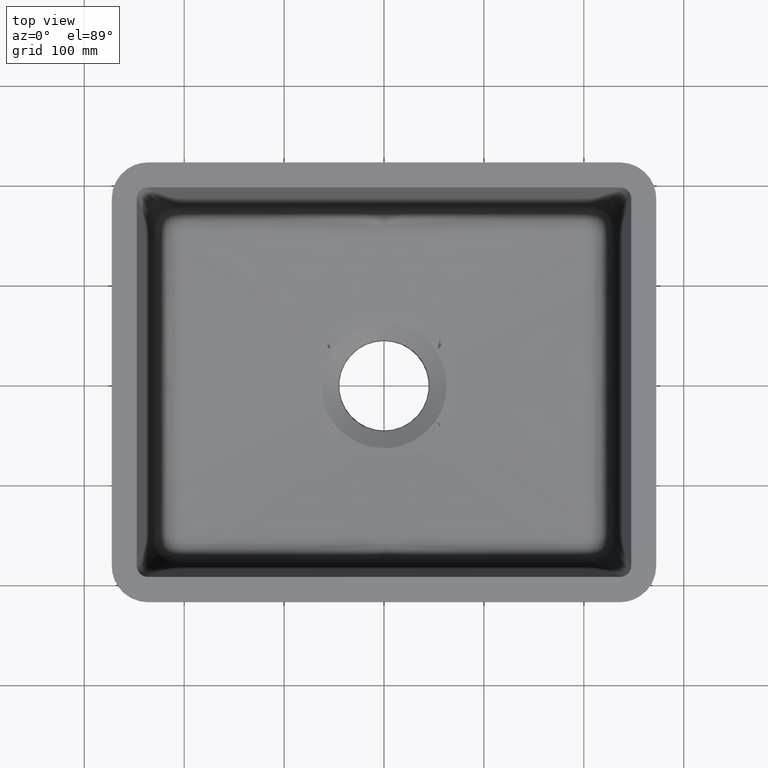
[diagram: clean part render]
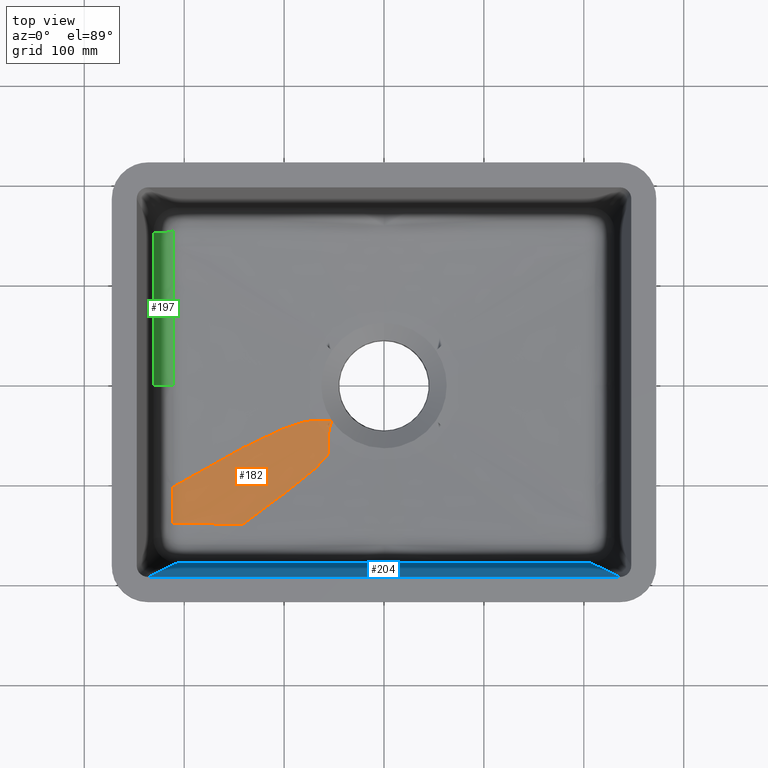
[diagram: same view with three faces highlighted in distinct colors, each labeled with its STEP entity id]
A machine part, top view with three faces highlighted in distinct colors.
Their STEP definitions:

[orange] entity #182 — the highlighted face is a freeform B-spline surface patch.
#114=(
BOUNDED_SURFACE()
B_SPLINE_SURFACE(3,2,((#7801,#7802,#7803),(#7804,#7805,#7806),(#7807,#7808,
#7809),(#7810,#7811,#7812),(#7813,#7814,#7815),(#7816,#7817,#7818),(#7819,
#7820,#7821),(#7822,#7823,#7824),(#7825,#7826,#7827),(#7828,#7829,#7830),
(#7831,#7832,#7833),(#7834,#7835,#7836),(#7837,#7838,#7839),(#7840,#7841,
#7842),(#7843,#7844,#7845),(#7846,#7847,#7848),(#7849,#7850,#7851),(#7852,
#7853,#7854),(#7855,#7856,#7857),(#7858,#7859,#7860),(#7861,#7862,#7863),
(#7864,#7865,#7866),(#7867,#7868,#7869),(#7870,#7871,#7872),(#7873,#7874,
#7875),(#7876,#7877,#7878),(#7879,#7880,#7881),(#7882,#7883,#7884),(#7885,
#7886,#7887),(#7888,#7889,#7890),(#7891,#7892,#7893),(#7894,#7895,#7896)),
 .UNSPECIFIED.,.F.,.F.,.F.)
B_SPLINE_SURFACE_WITH_KNOTS((4,2,2,2,2,2,2,2,2,2,2,2,2,2,2,4),(3,3),(0.,
0.213945135224831,0.475963423483221,0.606972567612415,0.73798171174161,
0.803486283806208,0.868990855870805,0.901743141903104,0.918119284919253,
0.926307356427328,0.934495427935403,0.942683499443477,0.950871570951552,
0.959059642459626,0.967247713967701,1.),(0.,1.),.UNSPECIFIED.)
GEOMETRIC_REPRESENTATION_ITEM()
RATIONAL_B_SPLINE_SURFACE(((1.,0.998413237192436,1.),(1.,0.998460611542919,
1.),(1.,0.998511674976756,1.),(1.,0.998636818169903,1.),(1.,0.998713128591255,
1.),(1.,0.998847950176381,1.),(1.,0.998896313805004,1.),(1.,0.999003929138397,
1.),(1.,0.999062835277853,1.),(1.,0.999167401912001,1.),(1.,0.99920499710205,
1.),(1.,0.999289860371923,1.),(1.,0.999336651411015,1.),(1.,0.999423425809369,
1.),(1.,0.999455012869462,1.),(1.,0.999511746587631,1.),(1.,0.999532179727924,
1.),(1.,0.999567907300105,1.),(1.,0.999580668768038,1.),(1.,0.999609438904281,
1.),(1.,0.999625279984538,1.),(1.,0.999664933178482,1.),(1.,0.999688954038963,
1.),(1.,0.999759227199769,1.),(1.,0.999804087082728,1.),(1.,0.999863667930379,
1.),(1.,0.999884263303245,1.),(1.,0.999918351986133,1.),(1.,0.999931515997214,
1.),(1.,0.999986636823786,1.),(1.,1.,1.),(1.,1.,1.)))
REPRESENTATION_ITEM('')
SURFACE()
);
#161=(
BOUNDED_CURVE()
B_SPLINE_CURVE(3,(#4969,#4970,#4971,#4972,#4973,#4974,#4975,#4976,#4977,
#4978,#4979,#4980,#4981,#4982,#4983,#4984,#4985,#4986,#4987,#4988,#4989,
#4990,#4991,#4992,#4993,#4994,#4995,#4996,#4997,#4998),.UNSPECIFIED.,.F.,
 .F.)
B_SPLINE_CURVE_WITH_KNOTS((4,2,2,2,2,2,2,2,2,2,2,2,2,2,4),(0.,0.218228102388509,
0.41367107679138,0.609114051194254,0.706835538395691,0.804557025597127,
0.853417769197846,0.877848140998204,0.890063326898384,0.902278512798564,
0.914493698698743,0.926708884598923,0.938924070499101,0.951139256399281,
1.),.UNSPECIFIED.)
CURVE()
GEOMETRIC_REPRESENTATION_ITEM()
RATIONAL_B_SPLINE_CURVE((1.,1.,1.,1.,1.,1.,1.,1.,1.,1.,1.,1.,1.,1.,1.,1.,
1.,1.,1.,1.,1.,1.,1.,1.,1.,1.,1.,1.,1.,1.))
REPRESENTATION_ITEM('')
);
#182=ADVANCED_FACE('',(#253),#114,.T.);
#253=FACE_OUTER_BOUND('',#323,.T.);
#323=EDGE_LOOP('',(#467,#468,#469,#470));
#467=ORIENTED_EDGE('',*,*,#934,.F.);
#468=ORIENTED_EDGE('',*,*,#935,.F.);
#469=ORIENTED_EDGE('',*,*,#932,.T.);
#470=ORIENTED_EDGE('',*,*,#929,.T.);
#787=VERTEX_POINT('',#1563);
#802=VERTEX_POINT('',#4955);
#805=VERTEX_POINT('',#5100);
#806=VERTEX_POINT('',#7796);
#929=EDGE_CURVE('',#802,#787,#161,.T.);
#932=EDGE_CURVE('',#805,#802,#1109,.T.);
#934=EDGE_CURVE('',#806,#787,#1111,.T.);
#935=EDGE_CURVE('',#805,#806,#1112,.T.);
#1109=B_SPLINE_CURVE_WITH_KNOTS('',3,(#5096,#5097,#5098,#5099),
 .UNSPECIFIED.,.F.,.F.,(4,4),(0.,1.),.UNSPECIFIED.);
#1111=B_SPLINE_CURVE_WITH_KNOTS('',3,(#7713,#7714,#7715,#7716,#7717,#7718,
#7719,#7720,#7721,#7722,#7723,#7724,#7725,#7726,#7727,#7728,#7729,#7730,
#7731,#7732,#7733,#7734,#7735,#7736,#7737,#7738,#7739,#7740,#7741,#7742,
#7743,#7744,#7745,#7746,#7747,#7748,#7749,#7750,#7751,#7752,#7753,#7754,
#7755,#7756,#7757,#7758,#7759,#7760,#7761,#7762,#7763,#7764,#7765,#7766,
#7767,#7768,#7769,#7770,#7771,#7772,#7773,#7774,#7775,#7776,#7777,#7778,
#7779,#7780,#7781,#7782,#7783,#7784,#7785,#7786,#7787,#7788,#7789,#7790,
#7791,#7792,#7793,#7794,#7795),.UNSPECIFIED.,.F.,.F.,(4,2,2,2,1,1,2,2,2,
2,2,1,1,1,1,2,2,2,2,1,1,1,2,2,2,2,2,1,1,2,2,2,2,1,1,2,2,2,2,1,1,2,2,2,2,
2,2,2,4),(0.,0.125000000000041,0.187500000000061,0.218750000000071,0.234375000000076,
0.242187500000079,0.24609375000008,0.250000000000082,0.375000000000131,
0.437500000000156,0.468750000000168,0.484375000000175,0.492187500000178,
0.49609375000018,0.498046875000181,0.499023437500181,0.500000000000181,
0.562500000000166,0.593750000000158,0.609375000000155,0.617187500000153,
0.621093750000152,0.623046875000152,0.625000000000151,0.687500000000131,
0.718750000000122,0.734375000000117,0.742187500000114,0.746093750000113,
0.748046875000112,0.750000000000111,0.781250000000099,0.796875000000092,
0.804687500000089,0.808593750000087,0.810546875000086,0.812500000000085,
0.843750000000072,0.859375000000065,0.867187500000062,0.87109375000006,
0.873046875000059,0.875000000000058,0.906250000000044,0.91406250000004,
0.921875000000037,0.937500000000029,0.968750000000015,1.),.UNSPECIFIED.);
#1112=B_SPLINE_CURVE_WITH_KNOTS('',3,(#7797,#7798,#7799,#7800),
 .UNSPECIFIED.,.F.,.F.,(4,4),(0.,1.),.UNSPECIFIED.);
#1563=CARTESIAN_POINT('',(-52.1158131093463,-34.9724057144112,-192.99999999983));
#4955=CARTESIAN_POINT('',(-141.270108558989,-138.983760886286,-184.541839191381));
#4969=CARTESIAN_POINT('',(-141.269525647501,-138.983398538869,-184.541870327406));
#4970=CARTESIAN_POINT('',(-133.899580339187,-133.5959238511,-185.051113968633));
#4971=CARTESIAN_POINT('',(-126.570455127032,-128.19728834914,-185.564932728706));
#4972=CARTESIAN_POINT('',(-112.784425051804,-117.932330907734,-186.549684389087));
#4973=CARTESIAN_POINT('',(-106.317988834228,-113.070074313085,-187.019455878666));
#4974=CARTESIAN_POINT('',(-93.5322467722745,-103.287391850615,-187.971511192661));
#4975=CARTESIAN_POINT('',(-87.2097263476138,-98.3733869447774,-188.453437371603));
#4976=CARTESIAN_POINT('',(-77.9274559921507,-90.859413833955,-189.192767148994));
#4977=CARTESIAN_POINT('',(-74.8669142887989,-88.3308693077029,-189.441968763072));
#4978=CARTESIAN_POINT('',(-68.8608759471136,-83.1516067804601,-189.950165056069));
#4979=CARTESIAN_POINT('',(-65.9083287352558,-80.5188818047026,-190.208180577461));
#4980=CARTESIAN_POINT('',(-61.6732746075574,-76.2331208167235,-190.616285061609));
#4981=CARTESIAN_POINT('',(-60.2914965414432,-74.7555850673313,-190.755447291769));
#4982=CARTESIAN_POINT('',(-58.3433114291255,-72.2527559524737,-190.980576897662));
#4983=CARTESIAN_POINT('',(-57.7138114017747,-71.3731573807112,-191.058231388741));
#4984=CARTESIAN_POINT('',(-56.8471797914638,-69.8513894804508,-191.185863006851));
#4985=CARTESIAN_POINT('',(-56.5713733732323,-69.3102097670113,-191.230278578584));
#4986=CARTESIAN_POINT('',(-56.0730653093119,-68.079669706664,-191.327087860522));
#4987=CARTESIAN_POINT('',(-55.8475072152078,-67.4005736412075,-191.378987412071));
#4988=CARTESIAN_POINT('',(-55.5342980711333,-65.6308617736462,-191.504163317496));
#4989=CARTESIAN_POINT('',(-55.4482231239251,-64.5558697672568,-191.577480297613));
#4990=CARTESIAN_POINT('',(-55.687077719542,-60.9576680333329,-191.79081394314));
#4991=CARTESIAN_POINT('',(-55.999939334908,-58.353014783994,-191.930026230617));
#4992=CARTESIAN_POINT('',(-56.1484313469957,-54.3575492535171,-192.134128529671));
#4993=CARTESIAN_POINT('',(-56.0793298183048,-52.733686751607,-192.213613730166));
#4994=CARTESIAN_POINT('',(-55.8374993897213,-49.7899011453666,-192.355339912883));
#4995=CARTESIAN_POINT('',(-55.6595590279543,-48.478937987216,-192.416840909885));
#4996=CARTESIAN_POINT('',(-54.6282156913824,-42.3326304792044,-192.700141660375));
#4997=CARTESIAN_POINT('',(-53.4254069746716,-38.6117705596744,-192.855971226691));
#4998=CARTESIAN_POINT('',(-52.1158131096415,-34.9724057240957,-192.999999999569));
#5096=CARTESIAN_POINT('',(-211.317940176307,-138.226194654573,-183.412093711679));
#5097=CARTESIAN_POINT('',(-184.962129355904,-138.47031772723,-184.234090788811));
#5098=CARTESIAN_POINT('',(-161.590534580382,-138.733104733323,-184.513424465114));
#5099=CARTESIAN_POINT('',(-141.270495582658,-138.98410756711,-184.541803307506));
#5100=CARTESIAN_POINT('',(-211.317979507766,-138.226189052092,-183.412252315662));
#7713=CARTESIAN_POINT('',(-211.318037619791,-101.915776598266,-184.174393737519));
#7714=CARTESIAN_POINT('',(-206.493833094038,-99.0737329394233,-184.450961300824));
#7715=CARTESIAN_POINT('',(-200.878994745624,-95.7786602149174,-184.773093106204));
#7716=CARTESIAN_POINT('',(-191.278278817381,-90.2204728862582,-185.324637177389));
#7717=CARTESIAN_POINT('',(-187.881651415119,-88.2653503868827,-185.519876261636));
#7718=CARTESIAN_POINT('',(-182.493238360462,-85.1888932343564,-185.829821478785));
#7719=CARTESIAN_POINT('',(-180.648189819305,-84.1394578969514,-185.935984316298));
#7720=CARTESIAN_POINT('',(-177.80739932351,-82.5307208670719,-186.099500220262));
#7721=CARTESIAN_POINT('',(-176.368699751433,-81.717707524946,-186.182326084168));
#7722=CARTESIAN_POINT('',(-174.658217848366,-80.754369164116,-186.280825104591));
#7723=CARTESIAN_POINT('',(-173.918300882351,-80.3383670952661,-186.323439437458));
#7724=CARTESIAN_POINT('',(-173.423500358054,-80.0603377373425,-186.351937985362));
#7725=CARTESIAN_POINT('',(-173.215127700901,-79.9433071826617,-186.363939864356));
#7726=CARTESIAN_POINT('',(-163.687648743067,-74.5960237758312,-186.91273507512));
#7727=CARTESIAN_POINT('',(-156.110312286776,-70.4716820539237,-187.350019903086));
#7728=CARTESIAN_POINT('',(-147.215734594755,-65.697739708733,-187.86362680769));
#7729=CARTESIAN_POINT('',(-144.662890864676,-64.3426975321258,-188.011109053));
#7730=CARTESIAN_POINT('',(-141.449997296845,-62.6497603045711,-188.196752336629));
#7731=CARTESIAN_POINT('',(-140.481767645613,-62.1421046410161,-188.252703417117));
#7732=CARTESIAN_POINT('',(-139.183373571791,-61.4642296451105,-188.327735016763));
#7733=CARTESIAN_POINT('',(-138.572664692949,-61.1461991751635,-188.363027061315));
#7734=CARTESIAN_POINT('',(-137.927497879493,-60.8115015572276,-188.400309541569));
#7735=CARTESIAN_POINT('',(-137.621743197862,-60.6532099186699,-188.417977888764));
#7736=CARTESIAN_POINT('',(-137.473072675762,-60.5763250851283,-188.426568839129));
#7737=CARTESIAN_POINT('',(-137.410258161269,-60.5438585960138,-188.430198555736));
#7738=CARTESIAN_POINT('',(-137.368582130513,-60.5223218222066,-188.432606784748));
#7739=CARTESIAN_POINT('',(-137.385581270039,-60.5311010748102,-188.431624507469));
#7740=CARTESIAN_POINT('',(-133.591225512219,-58.5710444929184,-188.65087816573));
#7741=CARTESIAN_POINT('',(-130.166127525446,-56.8388409667811,-188.848812074816));
#7742=CARTESIAN_POINT('',(-125.492738155024,-54.5181774171488,-189.11879301449));
#7743=CARTESIAN_POINT('',(-124.012323816757,-53.7909466121804,-189.204300007055));
#7744=CARTESIAN_POINT('',(-121.907567857694,-52.7676727747508,-189.325830514914));
#7745=CARTESIAN_POINT('',(-120.884156778582,-52.2729336301369,-189.384913273596));
#7746=CARTESIAN_POINT('',(-119.740829179489,-51.7249399692981,-189.450898792042));
#7747=CARTESIAN_POINT('',(-119.18182375868,-51.4582011862797,-189.483155459595));
#7748=CARTESIAN_POINT('',(-118.944962030696,-51.3454353995445,-189.496822011759));
#7749=CARTESIAN_POINT('',(-118.787656831048,-51.2706023525479,-189.505897994551));
#7750=CARTESIAN_POINT('',(-118.749173953721,-51.2522948179964,-189.508118331421));
#7751=CARTESIAN_POINT('',(-114.857866089555,-49.4039800778821,-189.732619573641));
#7752=CARTESIAN_POINT('',(-111.382505954754,-47.8170441399543,-189.932803199816));
#7753=CARTESIAN_POINT('',(-106.613563701103,-45.7182643002727,-190.206806816932));
#7754=CARTESIAN_POINT('',(-105.097941012444,-45.0657008000418,-190.293762718946));
#7755=CARTESIAN_POINT('',(-102.935247739465,-44.1549268481915,-190.41762861643));
#7756=CARTESIAN_POINT('',(-102.232807254974,-43.862686505459,-190.457822589668));
#7757=CARTESIAN_POINT('',(-101.206799639858,-43.4410950699631,-190.516471560642));
#7758=CARTESIAN_POINT('',(-100.700709153814,-43.2344921610455,-190.545385548908));
#7759=CARTESIAN_POINT('',(-100.12236184912,-43.0007422403625,-190.578400165081));
#7760=CARTESIAN_POINT('',(-99.8770890840954,-42.9021201024901,-190.59239534984));
#7761=CARTESIAN_POINT('',(-99.7141494682395,-42.8367173248579,-190.601691264911));
#7762=CARTESIAN_POINT('',(-99.6678103901903,-42.8181251832944,-190.604334874932));
#7763=CARTESIAN_POINT('',(-97.7002774066049,-42.0311452368415,-190.716551754192));
#7764=CARTESIAN_POINT('',(-95.942720367358,-41.3561880443203,-190.816446901198));
#7765=CARTESIAN_POINT('',(-93.4469874114349,-40.4372208898853,-190.957708512675));
#7766=CARTESIAN_POINT('',(-92.6385110595307,-40.1464924464102,-191.003365531661));
#7767=CARTESIAN_POINT('',(-91.4608616595877,-39.7332922925717,-191.069705782883));
#7768=CARTESIAN_POINT('',(-90.8808033194411,-39.5324168251405,-191.102339589179));
#7769=CARTESIAN_POINT('',(-90.2193915456482,-39.3079867973587,-191.139473804391));
#7770=CARTESIAN_POINT('',(-89.9392109525543,-39.2139202109004,-191.15518734831));
#7771=CARTESIAN_POINT('',(-89.7531529248342,-39.1516787819398,-191.16561835098));
#7772=CARTESIAN_POINT('',(-89.6898241005476,-39.1305348444264,-191.169168071282));
#7773=CARTESIAN_POINT('',(-87.6220162469711,-38.4438448727417,-191.285010192993));
#7774=CARTESIAN_POINT('',(-85.7755195660379,-37.8805343474921,-191.387598773157));
#7775=CARTESIAN_POINT('',(-83.1531763926359,-37.1505369432377,-191.531822694763));
#7776=CARTESIAN_POINT('',(-82.3036288315922,-36.9264011573198,-191.578287510525));
#7777=CARTESIAN_POINT('',(-81.0658925533169,-36.6181202946952,-191.645569997009));
#7778=CARTESIAN_POINT('',(-80.4561706673523,-36.470963857678,-191.678607555961));
#7779=CARTESIAN_POINT('',(-79.7607763045157,-36.3113472467483,-191.71609492723));
#7780=CARTESIAN_POINT('',(-79.4661613142541,-36.2455111659315,-191.73193456188));
#7781=CARTESIAN_POINT('',(-79.2705086655169,-36.20219023444,-191.742444011289));
#7782=CARTESIAN_POINT('',(-79.2047267845828,-36.1876950639631,-191.745975807229));
#7783=CARTESIAN_POINT('',(-77.0162301421208,-35.7121738346078,-191.863313087082));
#7784=CARTESIAN_POINT('',(-75.07566755396,-35.3787998550224,-191.965196220269));
#7785=CARTESIAN_POINT('',(-72.7933402131354,-35.0925760942864,-192.081860194585));
#7786=CARTESIAN_POINT('',(-72.3278972189089,-35.0392054418438,-192.105502349967));
#7787=CARTESIAN_POINT('',(-71.276616720002,-34.9373486639196,-192.158347274977));
#7788=CARTESIAN_POINT('',(-70.7440735754917,-34.8941411256994,-192.184860138236));
#7789=CARTESIAN_POINT('',(-69.1246986182574,-34.7846289747146,-192.264669930276));
#7790=CARTESIAN_POINT('',(-68.0161576927815,-34.7384709934122,-192.318238061318));
#7791=CARTESIAN_POINT('',(-64.5940776043455,-34.6548976423478,-192.480027263494));
#7792=CARTESIAN_POINT('',(-62.0047778679901,-34.6645559858758,-192.597460573109));
#7793=CARTESIAN_POINT('',(-57.0355907862835,-34.7668854638,-192.809708998414));
#7794=CARTESIAN_POINT('',(-54.5746826747584,-34.859510257868,-192.908514069805));
#7795=CARTESIAN_POINT('',(-52.1158131103127,-34.9724057089214,-192.999999999934));
#7796=CARTESIAN_POINT('',(-211.317997027342,-101.915897865153,-184.174955355603));
#7797=CARTESIAN_POINT('',(-211.318016847142,-138.226191616746,-183.412414050082));
#7798=CARTESIAN_POINT('',(-211.318345383734,-126.129929727785,-183.918184864331));
#7799=CARTESIAN_POINT('',(-211.318048611457,-114.022898939814,-184.155050179152));
#7800=CARTESIAN_POINT('',(-211.318029680537,-101.916061667627,-184.175541263196));
#7801=CARTESIAN_POINT('',(-191.577151895535,-175.281889793169,-181.158019257562));
#7802=CARTESIAN_POINT('',(-211.067987923482,-144.378588550905,-184.179823879416));
#7803=CARTESIAN_POINT('',(-230.447447617886,-113.277770650708,-183.078946150514));
#7804=CARTESIAN_POINT('',(-180.612971852928,-167.452974535719,-181.878843203767));
#7805=CARTESIAN_POINT('',(-199.74377947974,-136.964301533079,-184.812808938652));
#7806=CARTESIAN_POINT('',(-218.76473433808,-106.285003865904,-183.747232416204));
#7807=CARTESIAN_POINT('',(-169.690387944155,-159.611039813393,-182.6059906775));
#7808=CARTESIAN_POINT('',(-188.422557360858,-129.578197128843,-185.445750589459));
#7809=CARTESIAN_POINT('',(-207.046919394683,-99.3622240776873,-184.418822063707));
#7810=CARTESIAN_POINT('',(-145.532234149504,-142.128160917358,-184.24162086179));
#7811=CARTESIAN_POINT('',(-163.249781126077,-113.244938903255,-186.852870465901));
#7812=CARTESIAN_POINT('',(-180.863999060898,-84.1959918731617,-185.922814474405));
#7813=CARTESIAN_POINT('',(-132.324462107396,-132.481671630526,-185.153917527314));
#7814=CARTESIAN_POINT('',(-149.401526110357,-104.316985721253,-187.627052118098));
#7815=CARTESIAN_POINT('',(-166.378586388999,-75.9972100916714,-186.757263872045));
#7816=CARTESIAN_POINT('',(-112.784425051804,-117.932330907734,-186.549684389087));
#7817=CARTESIAN_POINT('',(-128.646676874672,-91.1193547250354,-188.783734562535));
#7818=CARTESIAN_POINT('',(-144.415653748452,-64.1693906521829,-188.025315865286));
#7819=CARTESIAN_POINT('',(-106.317988834228,-113.070074313085,-187.019455878666));
#7820=CARTESIAN_POINT('',(-121.73242823607,-86.7537871712249,-189.168457999283));
#7821=CARTESIAN_POINT('',(-137.05612969829,-60.3069064690908,-188.450701160022));
#7822=CARTESIAN_POINT('',(-93.5322467722745,-103.287391850615,-187.971511192661));
#7823=CARTESIAN_POINT('',(-107.907163258491,-78.1267283038013,-189.933891333142));
#7824=CARTESIAN_POINT('',(-122.197466605198,-52.8493958980213,-189.309210810625));
#7825=CARTESIAN_POINT('',(-87.2097263476138,-98.3733869447774,-188.453437371603));
#7826=CARTESIAN_POINT('',(-100.99792894183,-73.8645667645703,-190.314799296303));
#7827=CARTESIAN_POINT('',(-114.705066474008,-49.2465677512902,-189.742191695102));
#7828=CARTESIAN_POINT('',(-77.9274559921507,-90.859413833955,-189.192767148994));
#7829=CARTESIAN_POINT('',(-90.6123296416549,-67.6002460319949,-190.878227660187));
#7830=CARTESIAN_POINT('',(-103.223185173535,-44.2448579006695,-190.401437742509));
#7831=CARTESIAN_POINT('',(-74.8669142887989,-88.3308693077029,-189.441968763072));
#7832=CARTESIAN_POINT('',(-87.1463405271054,-65.534091976424,-191.064694240772));
#7833=CARTESIAN_POINT('',(-99.3543901497053,-42.6457046643138,-190.622855834681));
#7834=CARTESIAN_POINT('',(-68.8608759471136,-83.1516067804601,-189.950165056069));
#7835=CARTESIAN_POINT('',(-80.1923120835914,-61.4573569986674,-191.432419501458));
#7836=CARTESIAN_POINT('',(-91.4587176708891,-39.6817846374169,-191.070594498656));
#7837=CARTESIAN_POINT('',(-65.9083287352558,-80.5188818047026,-190.208180577461));
#7838=CARTESIAN_POINT('',(-76.7043642930222,-59.4527162445328,-191.613755800162));
#7839=CARTESIAN_POINT('',(-87.4390282477366,-38.3108414939706,-191.296811368268));
#7840=CARTESIAN_POINT('',(-61.6732746075574,-76.2331208167235,-190.616285061609));
#7841=CARTESIAN_POINT('',(-71.423273032847,-56.4523705295718,-191.878315423967));
#7842=CARTESIAN_POINT('',(-81.1191792700048,-36.6062840400784,-191.643222495618));
#7843=CARTESIAN_POINT('',(-60.2914965414432,-74.7555850673313,-190.755447291769));
#7844=CARTESIAN_POINT('',(-69.6529487939962,-55.4575923921439,-191.965213930341));
#7845=CARTESIAN_POINT('',(-78.9630266382059,-36.0980316111579,-191.759899657871));
#7846=CARTESIAN_POINT('',(-58.3433114291255,-72.2527559524737,-190.980576897662));
#7847=CARTESIAN_POINT('',(-66.9894836913031,-53.8941599424743,-192.093071981234));
#7848=CARTESIAN_POINT('',(-75.5893016184889,-35.4808256193897,-191.937826154481));
#7849=CARTESIAN_POINT('',(-57.7138114017747,-71.3731573807112,-191.058231388741));
#7850=CARTESIAN_POINT('',(-66.0996189385562,-53.3625220057955,-192.13527122438));
#7851=CARTESIAN_POINT('',(-74.4408995833434,-35.2996163702553,-191.997633627447));
#7852=CARTESIAN_POINT('',(-56.8471797914638,-69.8513894804508,-191.185863006851));
#7853=CARTESIAN_POINT('',(-64.7781956102587,-52.4876515014842,-192.198025739531));
#7854=CARTESIAN_POINT('',(-72.6679057908802,-35.0760106588214,-192.088286457561));
#7855=CARTESIAN_POINT('',(-56.5713733732323,-69.3102097670113,-191.230278578584));
#7856=CARTESIAN_POINT('',(-64.3400031228482,-52.1830508473928,-192.21885150483));
#7857=CARTESIAN_POINT('',(-72.0684814462748,-35.0095567365598,-192.118659748872));
#7858=CARTESIAN_POINT('',(-56.0730653093119,-68.079669706664,-191.327087860522));
#7859=CARTESIAN_POINT('',(-63.4799782524568,-51.5087735041182,-192.260454979262));
#7860=CARTESIAN_POINT('',(-70.8493456730234,-34.8951072908918,-192.179760860592));
#7861=CARTESIAN_POINT('',(-55.8475072152078,-67.4005736412075,-191.378987412071));
#7862=CARTESIAN_POINT('',(-63.0566127196015,-51.1442588918033,-192.281203514409));
#7863=CARTESIAN_POINT('',(-70.2296088569267,-34.8471510618596,-192.210489487665));
#7864=CARTESIAN_POINT('',(-55.5342980711333,-65.6308617736462,-191.504163317496));
#7865=CARTESIAN_POINT('',(-62.2663949594059,-50.2192329634601,-192.323239315261));
#7866=CARTESIAN_POINT('',(-68.9659768904705,-34.771807285418,-192.272339046924));
#7867=CARTESIAN_POINT('',(-55.4482231239251,-64.5558697672568,-191.577480297613));
#7868=CARTESIAN_POINT('',(-61.9001693509577,-49.6666993480163,-192.344279861214));
#7869=CARTESIAN_POINT('',(-68.3217660906456,-34.744807678785,-192.30346750547));
#7870=CARTESIAN_POINT('',(-55.687077719542,-60.9576680333329,-191.79081394314));
#7871=CARTESIAN_POINT('',(-61.3596242715829,-47.8452711638107,-192.391022628599));
#7872=CARTESIAN_POINT('',(-67.0082657793959,-34.7089228666386,-192.366062906757));
#7873=CARTESIAN_POINT('',(-55.999939334908,-58.353014783994,-191.930026230617));
#7874=CARTESIAN_POINT('',(-61.1797369274398,-46.5352497682758,-192.41811755072));
#7875=CARTESIAN_POINT('',(-66.3398506002845,-34.6988737781633,-192.397507013751));
#7876=CARTESIAN_POINT('',(-56.1484313469957,-54.3575492535171,-192.134128529671));
#7877=CARTESIAN_POINT('',(-60.5743982025105,-44.5263594587483,-192.474299855216));
#7878=CARTESIAN_POINT('',(-64.9864689126088,-34.6831119861622,-192.460462132626));
#7879=CARTESIAN_POINT('',(-56.0793298183048,-52.733686751607,-192.213613730166));
#7880=CARTESIAN_POINT('',(-60.1959548032439,-43.7110274141912,-192.503070166905));
#7881=CARTESIAN_POINT('',(-64.3007505692879,-34.678364885853,-192.491993160152));
#7882=CARTESIAN_POINT('',(-55.8374993897213,-49.7899011453666,-192.355339912883));
#7883=CARTESIAN_POINT('',(-59.3770204606715,-42.2364457401896,-192.561259877209));
#7884=CARTESIAN_POINT('',(-62.9081521356553,-34.6762824939695,-192.55515846887));
#7885=CARTESIAN_POINT('',(-55.6595590279543,-48.478937987216,-192.416840909885));
#7886=CARTESIAN_POINT('',(-58.9338997488993,-41.5817225056566,-192.590737865767));
#7887=CARTESIAN_POINT('',(-62.2011987736552,-34.6789864553943,-192.586795625197));
#7888=CARTESIAN_POINT('',(-54.6282156913824,-42.3326304792044,-192.700141660375));
#7889=CARTESIAN_POINT('',(-56.6163479913763,-38.5235535730116,-192.740058586008));
#7890=CARTESIAN_POINT('',(-58.6030982818821,-34.713771145603,-192.745265535268));
#7891=CARTESIAN_POINT('',(-53.4254069746716,-38.6117705596744,-192.855971226691));
#7892=CARTESIAN_POINT('',(-54.4717339254248,-36.6920307149637,-192.865258277394));
#7893=CARTESIAN_POINT('',(-55.5192168662554,-34.81605807198,-192.873373454928));
#7894=CARTESIAN_POINT('',(-52.1158131096415,-34.9724057240957,-192.999999999569));
#7895=CARTESIAN_POINT('',(-52.1158131096415,-34.9724057240957,-192.999999999569));
#7896=CARTESIAN_POINT('',(-52.1158131096415,-34.9724057240957,-192.999999999569));

[blue] entity #204 — the highlighted planar face has unit normal (0, -0.9947, -0.1031).
#51=PLANE('',#1215);
#65=LINE('',#15712,#89);
#89=VECTOR('',#1263,1.);
#204=ADVANCED_FACE('',(#275),#51,.F.);
#275=FACE_OUTER_BOUND('',#345,.T.);
#345=EDGE_LOOP('',(#574,#575,#576,#577,#578));
#574=ORIENTED_EDGE('',*,*,#984,.F.);
#575=ORIENTED_EDGE('',*,*,#982,.T.);
#576=ORIENTED_EDGE('',*,*,#962,.T.);
#577=ORIENTED_EDGE('',*,*,#964,.T.);
#578=ORIENTED_EDGE('',*,*,#985,.F.);
#822=VERTEX_POINT('',#14075);
#823=VERTEX_POINT('',#14222);
#824=VERTEX_POINT('',#14392);
#833=VERTEX_POINT('',#15656);
#834=VERTEX_POINT('',#15713);
#962=EDGE_CURVE('',#822,#823,#1139,.T.);
#964=EDGE_CURVE('',#823,#824,#1141,.T.);
#982=EDGE_CURVE('',#833,#822,#1158,.T.);
#984=EDGE_CURVE('',#833,#834,#65,.T.);
#985=EDGE_CURVE('',#834,#824,#1160,.T.);
#1139=B_SPLINE_CURVE_WITH_KNOTS('',3,(#14206,#14207,#14208,#14209,#14210,
#14211,#14212,#14213,#14214,#14215,#14216,#14217,#14218,#14219,#14220,#14221),
 .UNSPECIFIED.,.F.,.F.,(4,1,1,1,1,1,1,1,1,1,1,1,1,4),(0.,0.0625,0.125,0.15625,
0.1875,0.21875,0.25,0.3125,0.375,0.5,0.625,0.75,0.875,1.),.UNSPECIFIED.);
#1141=B_SPLINE_CURVE_WITH_KNOTS('',3,(#14376,#14377,#14378,#14379,#14380,
#14381,#14382,#14383,#14384,#14385,#14386,#14387,#14388,#14389,#14390,#14391),
 .UNSPECIFIED.,.F.,.F.,(4,1,1,1,1,1,1,1,1,1,1,1,1,4),(0.,0.125,0.25,0.375,
0.5,0.625,0.6875,0.75,0.78125,0.8125,0.84375,0.875,0.9375,1.),
 .UNSPECIFIED.);
#1158=B_SPLINE_CURVE_WITH_KNOTS('',3,(#15648,#15649,#15650,#15651,#15652,
#15653,#15654,#15655),.UNSPECIFIED.,.F.,.F.,(4,2,2,4),(0.,0.181818181818182,
0.454545454545455,1.),.UNSPECIFIED.);
#1160=B_SPLINE_CURVE_WITH_KNOTS('',3,(#15714,#15715,#15716,#15717,#15718,
#15719,#15720,#15721),.UNSPECIFIED.,.F.,.F.,(4,2,2,4),(0.,0.181818181818182,
0.454545454545455,1.),.UNSPECIFIED.);
#1215=AXIS2_PLACEMENT_3D('',#15722,#1264,#1265);
#1263=DIRECTION('',(-1.,0.,0.));
#1264=DIRECTION('',(0.,-0.994666723807651,-0.103141206846504));
#1265=DIRECTION('',(0.,-0.103141206846504,0.994666723807651));
#14075=CARTESIAN_POINT('',(206.71433134018,-177.920632429342,-164.708937441336));
#14206=CARTESIAN_POINT('',(206.71433134018,-177.920632429342,-164.708937441336));
#14207=CARTESIAN_POINT('',(202.407782770591,-177.920632429342,-164.708937441336));
#14208=CARTESIAN_POINT('',(193.794685631415,-177.920632429342,-164.708937441336));
#14209=CARTESIAN_POINT('',(183.028314207445,-177.920632429342,-164.708937441336));
#14210=CARTESIAN_POINT('',(174.41521706827,-177.920632429342,-164.708937441336));
#14211=CARTESIAN_POINT('',(167.955394213889,-177.920632429342,-164.708937441336));
#14212=CARTESIAN_POINT('',(161.495571359509,-177.920632429342,-164.708937441336));
#14213=CARTESIAN_POINT('',(152.882474220335,-177.920632429342,-164.708937441336));
#14214=CARTESIAN_POINT('',(142.116102796369,-177.920632429342,-164.708937441336));
#14215=CARTESIAN_POINT('',(124.889908518023,-177.920632429342,-164.708937441336));
#14216=CARTESIAN_POINT('',(103.357165670091,-177.920632429342,-164.708937441336));
#14217=CARTESIAN_POINT('',(77.5178742525694,-177.920632429342,-164.708937441336));
#14218=CARTESIAN_POINT('',(51.6785828350465,-177.920632429342,-164.708937441336));
#14219=CARTESIAN_POINT('',(25.839291417523,-177.920632429342,-164.708937441336));
#14220=CARTESIAN_POINT('',(8.61309713917418,-177.920632429342,-164.708937441336));
#14221=CARTESIAN_POINT('',(0.,-177.920632429342,-164.708937441336));
#14222=CARTESIAN_POINT('',(0.,-177.920632429342,-164.708937441336));
#14376=CARTESIAN_POINT('',(0.,-177.920632429342,-164.708937441336));
#14377=CARTESIAN_POINT('',(-8.61309713917418,-177.920632429342,-164.708937441336));
#14378=CARTESIAN_POINT('',(-25.839291417523,-177.920632429342,-164.708937441336));
#14379=CARTESIAN_POINT('',(-51.6785828350465,-177.920632429342,-164.708937441336));
#14380=CARTESIAN_POINT('',(-77.5178742525694,-177.920632429342,-164.708937441336));
#14381=CARTESIAN_POINT('',(-103.357165670091,-177.920632429342,-164.708937441336));
#14382=CARTESIAN_POINT('',(-124.889908518023,-177.920632429342,-164.708937441336));
#14383=CARTESIAN_POINT('',(-142.116102796369,-177.920632429342,-164.708937441336));
#14384=CARTESIAN_POINT('',(-152.882474220335,-177.920632429342,-164.708937441336));
#14385=CARTESIAN_POINT('',(-161.495571359509,-177.920632429342,-164.708937441336));
#14386=CARTESIAN_POINT('',(-167.955394213889,-177.920632429342,-164.708937441336));
#14387=CARTESIAN_POINT('',(-174.41521706827,-177.920632429342,-164.708937441336));
#14388=CARTESIAN_POINT('',(-183.028314207445,-177.920632429342,-164.708937441336));
#14389=CARTESIAN_POINT('',(-193.794685631415,-177.920632429342,-164.708937441336));
#14390=CARTESIAN_POINT('',(-202.407782770591,-177.920632429342,-164.708937441336));
#14391=CARTESIAN_POINT('',(-206.71433134018,-177.920632429342,-164.708937441336));
#14392=CARTESIAN_POINT('',(-206.71433134018,-177.920632429342,-164.708937441336));
#15648=CARTESIAN_POINT('',(260.390380408466,-208.958566447442,134.612750635148));
#15649=CARTESIAN_POINT('',(252.811068060076,-204.575863162545,92.3471106344686));
#15650=CARTESIAN_POINT('',(245.231755711686,-200.193159877647,50.0814706337888));
#15651=CARTESIAN_POINT('',(226.283474840712,-189.236401665404,-55.5826293679107));
#15652=CARTESIAN_POINT('',(214.914506318127,-182.662346738058,-118.98108936893));
#15653=CARTESIAN_POINT('',(180.807600750373,-162.940181956019,-309.176469371989));
#15654=CARTESIAN_POINT('',(158.069663705203,-149.792072101327,-435.973389374029));
#15655=CARTESIAN_POINT('',(135.331726660033,-136.643962246634,-562.770309376068));
#15656=CARTESIAN_POINT('',(236.250864642863,-194.999999999892,-2.22044604925031E-12));
#15712=CARTESIAN_POINT('',(294.998988260585,-194.999999999892,0.));
#15713=CARTESIAN_POINT('',(-236.250864642863,-194.999999999892,-2.21700204490934E-12));
#15714=CARTESIAN_POINT('',(-260.390380408466,-208.958566447442,134.612750635148));
#15715=CARTESIAN_POINT('',(-252.811068060076,-204.575863162545,92.3471106344686));
#15716=CARTESIAN_POINT('',(-245.231755711686,-200.193159877647,50.0814706337888));
#15717=CARTESIAN_POINT('',(-226.283474840712,-189.236401665404,-55.5826293679107));
#15718=CARTESIAN_POINT('',(-214.914506318127,-182.662346738058,-118.98108936893));
#15719=CARTESIAN_POINT('',(-180.807600750373,-162.940181956019,-309.176469371989));
#15720=CARTESIAN_POINT('',(-158.069663705203,-149.792072101327,-435.973389374029));
#15721=CARTESIAN_POINT('',(-135.331726660033,-136.643962246634,-562.770309376068));
#15722=CARTESIAN_POINT('',(294.998988260585,-195.708540699191,6.832980509));

[green] entity #197 — the highlighted face is a freeform B-spline surface patch.
#140=B_SPLINE_SURFACE_WITH_KNOTS('',3,3,((#14877,#14878,#14879,#14880,#14881,
#14882,#14883,#14884,#14885,#14886),(#14887,#14888,#14889,#14890,#14891,
#14892,#14893,#14894,#14895,#14896),(#14897,#14898,#14899,#14900,#14901,
#14902,#14903,#14904,#14905,#14906),(#14907,#14908,#14909,#14910,#14911,
#14912,#14913,#14914,#14915,#14916),(#14917,#14918,#14919,#14920,#14921,
#14922,#14923,#14924,#14925,#14926),(#14927,#14928,#14929,#14930,#14931,
#14932,#14933,#14934,#14935,#14936),(#14937,#14938,#14939,#14940,#14941,
#14942,#14943,#14944,#14945,#14946),(#14947,#14948,#14949,#14950,#14951,
#14952,#14953,#14954,#14955,#14956),(#14957,#14958,#14959,#14960,#14961,
#14962,#14963,#14964,#14965,#14966),(#14967,#14968,#14969,#14970,#14971,
#14972,#14973,#14974,#14975,#14976),(#14977,#14978,#14979,#14980,#14981,
#14982,#14983,#14984,#14985,#14986),(#14987,#14988,#14989,#14990,#14991,
#14992,#14993,#14994,#14995,#14996),(#14997,#14998,#14999,#15000,#15001,
#15002,#15003,#15004,#15005,#15006),(#15007,#15008,#15009,#15010,#15011,
#15012,#15013,#15014,#15015,#15016)),.UNSPECIFIED.,.F.,.F.,.F.,(4,1,1,1,
1,1,1,1,1,1,1,4),(4,1,1,1,1,1,1,4),(0.,0.25,0.5,0.5625,0.625,0.6875,0.75,
0.8125,0.875,0.90625,0.9375,1.),(0.,0.125,0.25,0.5,0.625,0.75,0.875,1.),
 .UNSPECIFIED.);
#197=ADVANCED_FACE('',(#268),#140,.F.);
#268=FACE_OUTER_BOUND('',#338,.T.);
#338=EDGE_LOOP('',(#541,#542,#543,#544,#545,#546));
#541=ORIENTED_EDGE('',*,*,#970,.F.);
#542=ORIENTED_EDGE('',*,*,#969,.T.);
#543=ORIENTED_EDGE('',*,*,#939,.T.);
#544=ORIENTED_EDGE('',*,*,#942,.T.);
#545=ORIENTED_EDGE('',*,*,#944,.T.);
#546=ORIENTED_EDGE('',*,*,#971,.F.);
#807=VERTEX_POINT('',#7926);
#808=VERTEX_POINT('',#7994);
#810=VERTEX_POINT('',#8134);
#811=VERTEX_POINT('',#8246);
#826=VERTEX_POINT('',#14700);
#827=VERTEX_POINT('',#14865);
#939=EDGE_CURVE('',#807,#808,#1116,.T.);
#942=EDGE_CURVE('',#808,#810,#1119,.T.);
#944=EDGE_CURVE('',#810,#811,#1121,.T.);
#969=EDGE_CURVE('',#826,#807,#1146,.T.);
#970=EDGE_CURVE('',#826,#827,#1147,.T.);
#971=EDGE_CURVE('',#827,#811,#1148,.T.);
#1116=B_SPLINE_CURVE_WITH_KNOTS('',3,(#7995,#7996,#7997,#7998),
 .UNSPECIFIED.,.F.,.F.,(4,4),(0.,1.),.UNSPECIFIED.);
#1119=B_SPLINE_CURVE_WITH_KNOTS('',3,(#8135,#8136,#8137,#8138),
 .UNSPECIFIED.,.F.,.F.,(4,4),(0.,1.),.UNSPECIFIED.);
#1121=B_SPLINE_CURVE_WITH_KNOTS('',3,(#8248,#8249,#8250,#8251),
 .UNSPECIFIED.,.F.,.F.,(4,4),(0.,1.),.UNSPECIFIED.);
#1146=B_SPLINE_CURVE_WITH_KNOTS('',3,(#14701,#14702,#14703,#14704,#14705,
#14706,#14707,#14708,#14709,#14710),.UNSPECIFIED.,.F.,.F.,(4,1,1,1,1,1,
1,4),(0.,0.125,0.25,0.5,0.625,0.75,0.875,1.),.UNSPECIFIED.);
#1147=B_SPLINE_CURVE_WITH_KNOTS('',3,(#14851,#14852,#14853,#14854,#14855,
#14856,#14857,#14858,#14859,#14860,#14861,#14862,#14863,#14864),
 .UNSPECIFIED.,.F.,.F.,(4,1,1,1,1,1,1,1,1,1,1,4),(0.,0.25,0.5,0.5625,0.625,
0.6875,0.75,0.8125,0.875,0.90625,0.9375,1.),.UNSPECIFIED.);
#1148=B_SPLINE_CURVE_WITH_KNOTS('',3,(#14866,#14867,#14868,#14869,#14870,
#14871,#14872,#14873,#14874,#14875,#14876),.UNSPECIFIED.,.F.,.F.,(4,1,1,
1,1,1,1,1,4),(0.,0.125,0.25,0.375,0.5,0.625,0.75,0.875,1.),
 .UNSPECIFIED.);
#7926=CARTESIAN_POINT('',(-211.317966242198,-1.36651700505057E-5,-184.225271679724));
#7994=CARTESIAN_POINT('',(-211.317997027342,101.915897865153,-184.174955355603));
#7995=CARTESIAN_POINT('',(-211.317966242321,-9.17361093630645E-13,-184.225271681099));
#7996=CARTESIAN_POINT('',(-211.318196245602,33.9719149916102,-184.225258082695));
#7997=CARTESIAN_POINT('',(-211.31800606746,67.9438875932656,-184.233031576423));
#7998=CARTESIAN_POINT('',(-211.318030870403,101.915737068558,-184.175541746338));
#8134=CARTESIAN_POINT('',(-211.317979507767,138.226189052092,-183.412252315662));
#8135=CARTESIAN_POINT('',(-211.318029680537,101.916061667627,-184.175541263196));
#8136=CARTESIAN_POINT('',(-211.318048611457,114.022898939814,-184.155050179152));
#8137=CARTESIAN_POINT('',(-211.318345383733,126.129929727785,-183.918184864332));
#8138=CARTESIAN_POINT('',(-211.318016847142,138.226191616746,-183.412414050082));
#8246=CARTESIAN_POINT('',(-211.31796567987,154.491870848622,-182.528246413689));
#8248=CARTESIAN_POINT('',(-211.317975205597,138.226191670457,-183.412415351616));
#8249=CARTESIAN_POINT('',(-211.31779560274,143.651430494119,-183.185575271885));
#8250=CARTESIAN_POINT('',(-211.318029573948,149.072683979766,-182.870624797957));
#8251=CARTESIAN_POINT('',(-211.317965679576,154.491870884314,-182.52824641144));
#14700=CARTESIAN_POINT('',(-230.884217562772,0.,-164.708937441336));
#14701=CARTESIAN_POINT('',(-230.884217562772,2.8421709430404E-14,-164.708937441336));
#14702=CARTESIAN_POINT('',(-230.758454396216,2.84952439604452E-14,-165.955602629149));
#14703=CARTESIAN_POINT('',(-230.300389192781,2.1730828700736E-6,-168.428327662098));
#14704=CARTESIAN_POINT('',(-228.584429714561,1.18565504365221E-5,-173.155136387743));
#14705=CARTESIAN_POINT('',(-225.708216244221,2.45134266042581E-5,-177.349653148686));
#14706=CARTESIAN_POINT('',(-221.879262399003,2.74756640558404E-5,-180.616817308877));
#14707=CARTESIAN_POINT('',(-218.617227664891,2.1695665915476E-5,-182.5137215946));
#14708=CARTESIAN_POINT('',(-215.056985430467,4.90506727522978E-6,-183.771897130407));
#14709=CARTESIAN_POINT('',(-212.568778814631,-1.50263750682881E-5,-184.151389894259));
#14710=CARTESIAN_POINT('',(-211.317966242154,-2.73303400870075E-5,-184.225271681109));
#14851=CARTESIAN_POINT('',(-230.884217562772,2.8421709430404E-14,-164.708937441336));
#14852=CARTESIAN_POINT('',(-230.884217562772,12.8099741246758,-164.708937441336));
#14853=CARTESIAN_POINT('',(-230.884217562772,38.4299223740267,-164.708937441336));
#14854=CARTESIAN_POINT('',(-230.884217562772,67.2523641545471,-164.708937441336));
#14855=CARTESIAN_POINT('',(-230.884217562772,86.4673253415616,-164.708937441336));
#14856=CARTESIAN_POINT('',(-230.884217562772,96.074805935069,-164.708937441336));
#14857=CARTESIAN_POINT('',(-230.884217562772,105.682286528576,-164.708937441336));
#14858=CARTESIAN_POINT('',(-230.884217562772,115.289767122083,-164.708937441336));
#14859=CARTESIAN_POINT('',(-230.884217562772,124.89724771559,-164.708937441336));
#14860=CARTESIAN_POINT('',(-230.884217562772,132.903481543513,-164.708937441336));
#14861=CARTESIAN_POINT('',(-230.884217562772,139.30846860585,-164.708937441336));
#14862=CARTESIAN_POINT('',(-230.884217562772,145.713455668188,-164.708937441336));
#14863=CARTESIAN_POINT('',(-230.884217562772,150.51719596494,-164.708937441336));
#14864=CARTESIAN_POINT('',(-230.884217562772,153.719689496109,-164.708937441336));
#14865=CARTESIAN_POINT('',(-230.884217562772,153.719689496109,-164.708937441336));
#14866=CARTESIAN_POINT('',(-230.884217562772,153.719689496105,-164.708937441336));
#14867=CARTESIAN_POINT('',(-230.764230006833,153.503002641477,-165.898350152988));
#14868=CARTESIAN_POINT('',(-230.302306058131,153.122388642628,-168.264665466287));
#14869=CARTESIAN_POINT('',(-228.954095744653,152.733907875674,-171.647137451818));
#14870=CARTESIAN_POINT('',(-226.99799889129,152.543218845877,-174.735385937643));
#14871=CARTESIAN_POINT('',(-224.51917902973,152.551394909249,-177.430219603546));
#14872=CARTESIAN_POINT('',(-221.601559970834,152.760076641061,-179.631047831307));
#14873=CARTESIAN_POINT('',(-218.352714819241,153.15882902224,-181.270096273791));
#14874=CARTESIAN_POINT('',(-214.882339461542,153.736016997995,-182.283102654105));
#14875=CARTESIAN_POINT('',(-212.503320959186,154.225582193894,-182.519527251153));
#14876=CARTESIAN_POINT('',(-211.317965680366,154.491870812884,-182.528246415936));
#14877=CARTESIAN_POINT('',(-230.884217562772,2.8421709430404E-14,-164.708937441336));
#14878=CARTESIAN_POINT('',(-230.758454396216,2.84952439604452E-14,-165.955602629149));
#14879=CARTESIAN_POINT('',(-230.300389192781,2.1730828700736E-6,-168.428327662098));
#14880=CARTESIAN_POINT('',(-228.584429714561,1.18565504365221E-5,-173.155136387743));
#14881=CARTESIAN_POINT('',(-225.708216244221,2.45134266042581E-5,-177.349653148686));
#14882=CARTESIAN_POINT('',(-221.879262399003,2.74756640558404E-5,-180.616817308877));
#14883=CARTESIAN_POINT('',(-218.617227664891,2.1695665915476E-5,-182.5137215946));
#14884=CARTESIAN_POINT('',(-215.056985430467,4.90506727522978E-6,-183.771897130407));
#14885=CARTESIAN_POINT('',(-212.568778814631,-1.50263750682881E-5,-184.151389894259));
#14886=CARTESIAN_POINT('',(-211.317966242154,-2.73303400870075E-5,-184.225271681109));
#14887=CARTESIAN_POINT('',(-230.884217562772,12.8099741246758,-164.708937441336));
#14888=CARTESIAN_POINT('',(-230.758347194402,12.7920372877116,-165.956665299348));
#14889=CARTESIAN_POINT('',(-230.299633356934,12.7605618094896,-168.432074468095));
#14890=CARTESIAN_POINT('',(-228.57998063671,12.7178887964581,-173.165300882831));
#14891=CARTESIAN_POINT('',(-225.695962051812,12.7081872121785,-177.36459858077));
#14892=CARTESIAN_POINT('',(-221.860954750279,12.7318171851516,-180.629862934865));
#14893=CARTESIAN_POINT('',(-218.597959712773,12.7654339009858,-182.522384274053));
#14894=CARTESIAN_POINT('',(-215.04303175056,12.813871798117,-183.774736908852));
#14895=CARTESIAN_POINT('',(-212.563446859187,12.8548918675026,-184.151705648745));
#14896=CARTESIAN_POINT('',(-211.318044989602,12.8771921318699,-184.225267029731));
#14897=CARTESIAN_POINT('',(-230.884217562772,38.4299223740267,-164.708937441336));
#14898=CARTESIAN_POINT('',(-230.758161124632,38.3761118324838,-165.958509771866));
#14899=CARTESIAN_POINT('',(-230.297919536027,38.2816811710532,-168.438907834741));
#14900=CARTESIAN_POINT('',(-228.568972287693,38.153643691042,-173.183838079306));
#14901=CARTESIAN_POINT('',(-225.667698442561,38.1245136990473,-177.390233525365));
#14902=CARTESIAN_POINT('',(-221.821419277099,38.1953978140222,-180.6498632135));
#14903=CARTESIAN_POINT('',(-218.55775871283,38.2962598366987,-182.532985466026));
#14904=CARTESIAN_POINT('',(-215.014727356752,38.4416069438326,-183.773945625148));
#14905=CARTESIAN_POINT('',(-212.552638290583,38.564705790124,-184.145829648557));
#14906=CARTESIAN_POINT('',(-211.318046810234,38.6316303598574,-184.21841240496));
#14907=CARTESIAN_POINT('',(-230.884217562772,67.2523641545471,-164.708937441336));
#14908=CARTESIAN_POINT('',(-230.757987465173,67.15819573267,-165.960231223457));
#14909=CARTESIAN_POINT('',(-230.295471311926,66.9929405817355,-168.44594643419));
#14910=CARTESIAN_POINT('',(-228.551762062038,66.7688689146864,-173.202619295723));
#14911=CARTESIAN_POINT('',(-225.627434602868,66.7178805508631,-177.412584171788));
#14912=CARTESIAN_POINT('',(-221.770444748095,66.8419259319074,-180.662879670413));
#14913=CARTESIAN_POINT('',(-218.50893333002,67.0184410313014,-182.534855487346));
#14914=CARTESIAN_POINT('',(-214.982207936758,67.2728138587758,-183.764422774969));
#14915=CARTESIAN_POINT('',(-212.540405586203,67.488252283954,-184.131073742197));
#14916=CARTESIAN_POINT('',(-211.317964823418,67.6053796545681,-184.202080418546));
#14917=CARTESIAN_POINT('',(-230.884217562772,86.4673253415616,-164.708937441336));
#14918=CARTESIAN_POINT('',(-230.757896556159,86.3462503116927,-165.961132386378));
#14919=CARTESIAN_POINT('',(-230.293652618357,86.1337765356627,-168.45013077318));
#14920=CARTESIAN_POINT('',(-228.538346624486,85.8456787885159,-173.213910822053));
#14921=CARTESIAN_POINT('',(-225.597164974136,85.7801146391792,-177.42437679011));
#14922=CARTESIAN_POINT('',(-221.733873652175,85.9395970241196,-180.666982340356));
#14923=CARTESIAN_POINT('',(-218.475007080957,86.1665444420912,-182.530966703199));
#14924=CARTESIAN_POINT('',(-214.960363755414,86.4935969463851,-183.752984982413));
#14925=CARTESIAN_POINT('',(-212.532324897354,86.7705907255537,-184.11579072021));
#14926=CARTESIAN_POINT('',(-211.317971296134,86.9211840642637,-184.185208975862));
#14927=CARTESIAN_POINT('',(-230.884217562772,96.074805935069,-164.708937441336));
#14928=CARTESIAN_POINT('',(-230.757846616759,95.9402780555382,-165.961627425693));
#14929=CARTESIAN_POINT('',(-230.292665684562,95.7041945232547,-168.452128051097));
#14930=CARTESIAN_POINT('',(-228.531122112842,95.3840795255491,-173.218457372583));
#14931=CARTESIAN_POINT('',(-225.581120201797,95.3112210749798,-177.427527280939));
#14932=CARTESIAN_POINT('',(-221.714805197077,95.4884198028896,-180.665549093529));
#14933=CARTESIAN_POINT('',(-218.457516455472,95.7405854933065,-182.525813512362));
#14934=CARTESIAN_POINT('',(-214.949228842107,96.1039851190936,-183.745485397282));
#14935=CARTESIAN_POINT('',(-212.528217966581,96.41176577492,-184.108136508343));
#14936=CARTESIAN_POINT('',(-211.31796968435,96.579098056403,-184.177847522599));
#14937=CARTESIAN_POINT('',(-230.884217562772,105.682286528576,-164.708937441336));
#14938=CARTESIAN_POINT('',(-230.757761225202,105.5343083729,-165.962473895159));
#14939=CARTESIAN_POINT('',(-230.291616843085,105.274626048861,-168.456518155046));
#14940=CARTESIAN_POINT('',(-228.523772808378,104.922530341042,-173.232672031423));
#14941=CARTESIAN_POINT('',(-225.565131388176,104.842422716336,-177.44933241156));
#14942=CARTESIAN_POINT('',(-221.696237373338,105.037365714008,-180.687971123612));
#14943=CARTESIAN_POINT('',(-218.440778463775,105.314755570853,-182.545137246));
#14944=CARTESIAN_POINT('',(-214.938802744347,105.714486539936,-183.758366207546));
#14945=CARTESIAN_POINT('',(-212.524414712943,106.053024630755,-184.113859373101));
#14946=CARTESIAN_POINT('',(-211.317960794193,106.237075333186,-184.178998771749));
#14947=CARTESIAN_POINT('',(-230.884217562772,115.289767122083,-164.708937441336));
#14948=CARTESIAN_POINT('',(-230.758129632422,115.1283188749,-165.958821947863));
#14949=CARTESIAN_POINT('',(-230.291674576781,114.845054254128,-168.448142062625));
#14950=CARTESIAN_POINT('',(-228.517895079903,114.46115112476,-173.219236017635));
#14951=CARTESIAN_POINT('',(-225.550226673998,114.374051412652,-177.429346309758));
#14952=CARTESIAN_POINT('',(-221.678433485162,114.586827139875,-180.652397691561));
#14953=CARTESIAN_POINT('',(-218.424584354859,114.889360084011,-182.492567016472));
#14954=CARTESIAN_POINT('',(-214.928706104501,115.325130612667,-183.682942267794));
#14955=CARTESIAN_POINT('',(-212.520756257709,115.6940488985,-184.017983517312));
#14956=CARTESIAN_POINT('',(-211.318012853281,115.894573208982,-184.071133378497));
#14957=CARTESIAN_POINT('',(-230.884217562772,124.89724771559,-164.708937441336));
#14958=CARTESIAN_POINT('',(-230.758926449357,124.722254726487,-165.950923260511));
#14959=CARTESIAN_POINT('',(-230.292655179813,124.415265807643,-168.425600828572));
#14960=CARTESIAN_POINT('',(-228.512729307301,123.999289467755,-173.168065153533));
#14961=CARTESIAN_POINT('',(-225.534937914622,123.904942380568,-177.345571452247));
#14962=CARTESIAN_POINT('',(-221.65959687481,124.13527328651,-180.531385554442));
#14963=CARTESIAN_POINT('',(-218.407209247295,124.462721827903,-182.342233038864));
#14964=CARTESIAN_POINT('',(-214.917732134,124.934276733748,-183.502998933664));
#14965=CARTESIAN_POINT('',(-212.516764188862,125.333380993775,-183.817734801856));
#14966=CARTESIAN_POINT('',(-211.318128742438,125.550274416086,-183.860352381693));
#14967=CARTESIAN_POINT('',(-230.884217562772,132.903481543513,-164.708937441336));
#14968=CARTESIAN_POINT('',(-230.759944082183,132.717107373634,-165.940835669264));
#14969=CARTESIAN_POINT('',(-230.294264831294,132.390130116479,-168.395493399258));
#14970=CARTESIAN_POINT('',(-228.509177274014,131.946914148807,-173.096304281039));
#14971=CARTESIAN_POINT('',(-225.522218510105,131.84596981611,-177.227344773625));
#14972=CARTESIAN_POINT('',(-221.643452051382,132.090462875578,-180.365358968239));
#14973=CARTESIAN_POINT('',(-218.392118539435,132.43840344624,-182.141455616479));
#14974=CARTESIAN_POINT('',(-214.908055561817,132.939621060333,-183.270444364128));
#14975=CARTESIAN_POINT('',(-212.513128885107,133.363873391968,-183.566161828681));
#14976=CARTESIAN_POINT('',(-211.318097753921,133.594434515892,-183.599726495107));
#14977=CARTESIAN_POINT('',(-230.884217562772,139.30846860585,-164.708937441336));
#14978=CARTESIAN_POINT('',(-230.76095874314,139.1129156444,-165.930777537557));
#14979=CARTESIAN_POINT('',(-230.296020617036,138.769815371435,-168.365291593264));
#14980=CARTESIAN_POINT('',(-228.506858221878,138.304581383491,-173.024059407997));
#14981=CARTESIAN_POINT('',(-225.512250264601,138.19815578928,-177.1088054427));
#14982=CARTESIAN_POINT('',(-221.63051182915,138.45372898548,-180.199976426142));
#14983=CARTESIAN_POINT('',(-218.379893804272,138.817835683911,-181.942303414029));
#14984=CARTESIAN_POINT('',(-214.900083926041,139.34249833223,-183.040582401824));
#14985=CARTESIAN_POINT('',(-212.509955719036,139.786629024309,-183.318061757436));
#14986=CARTESIAN_POINT('',(-211.317806435373,140.027988887129,-183.343003432315));
#14987=CARTESIAN_POINT('',(-230.884217562772,145.713455668188,-164.708937441336));
#14988=CARTESIAN_POINT('',(-230.762280837622,145.508583561588,-165.917671878637));
#14989=CARTESIAN_POINT('',(-230.298503027951,145.149007265808,-168.324941367721));
#14990=CARTESIAN_POINT('',(-228.50546251794,144.660868492658,-172.924887220807));
#14991=CARTESIAN_POINT('',(-225.502831245767,144.547966304019,-176.944918597728));
#14992=CARTESIAN_POINT('',(-221.617793522174,144.813841144235,-179.973852860516));
#14993=CARTESIAN_POINT('',(-218.367750474958,145.193719871634,-181.673541534345));
#14994=CARTESIAN_POINT('',(-214.892239444621,145.74170452005,-182.736063899087));
#14995=CARTESIAN_POINT('',(-212.507106622974,146.205866435321,-182.995196210688));
#14996=CARTESIAN_POINT('',(-211.317999901124,146.458173749855,-183.012446972294));
#14997=CARTESIAN_POINT('',(-230.884217562772,150.51719596494,-164.708937441336));
#14998=CARTESIAN_POINT('',(-230.763410819948,150.305257737366,-165.906470589208));
#14999=CARTESIAN_POINT('',(-230.30068972803,149.933112583845,-168.290041325711));
#15000=CARTESIAN_POINT('',(-228.504783043043,149.42722579469,-172.83797308321));
#15001=CARTESIAN_POINT('',(-225.495929696155,149.308809265471,-176.800659229565));
#15002=CARTESIAN_POINT('',(-221.608277226166,149.581928606258,-179.775719469446));
#15003=CARTESIAN_POINT('',(-218.358588232956,149.97342829312,-181.439465166301));
#15004=CARTESIAN_POINT('',(-214.886247746119,150.538915208538,-182.47324563695));
#15005=CARTESIAN_POINT('',(-212.504825059463,151.018297310601,-182.719036322073));
#15006=CARTESIAN_POINT('',(-211.317989140469,151.278971940963,-182.731234213785));
#15007=CARTESIAN_POINT('',(-230.884217562772,153.719689496109,-164.708937441336));
#15008=CARTESIAN_POINT('',(-230.764228623942,153.503000147046,-165.898363861313));
#15009=CARTESIAN_POINT('',(-230.302311480504,153.122375277475,-168.264724724887));
#15010=CARTESIAN_POINT('',(-228.504572399992,152.604406245341,-172.774799726509));
#15011=CARTESIAN_POINT('',(-225.491554746009,152.48203374325,-176.695818484265));
#15012=CARTESIAN_POINT('',(-221.602137757199,152.759762442038,-179.631943333243));
#15013=CARTESIAN_POINT('',(-218.352652200103,153.158896158677,-181.269838110985));
#15014=CARTESIAN_POINT('',(-214.882362047068,153.736012139329,-182.283101738787));
#15015=CARTESIAN_POINT('',(-212.50333461028,154.225579195478,-182.519527146459));
#15016=CARTESIAN_POINT('',(-211.317965679576,154.491870884314,-182.52824641144));